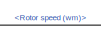
[diagram: root canvas - part 1/3, top center region]
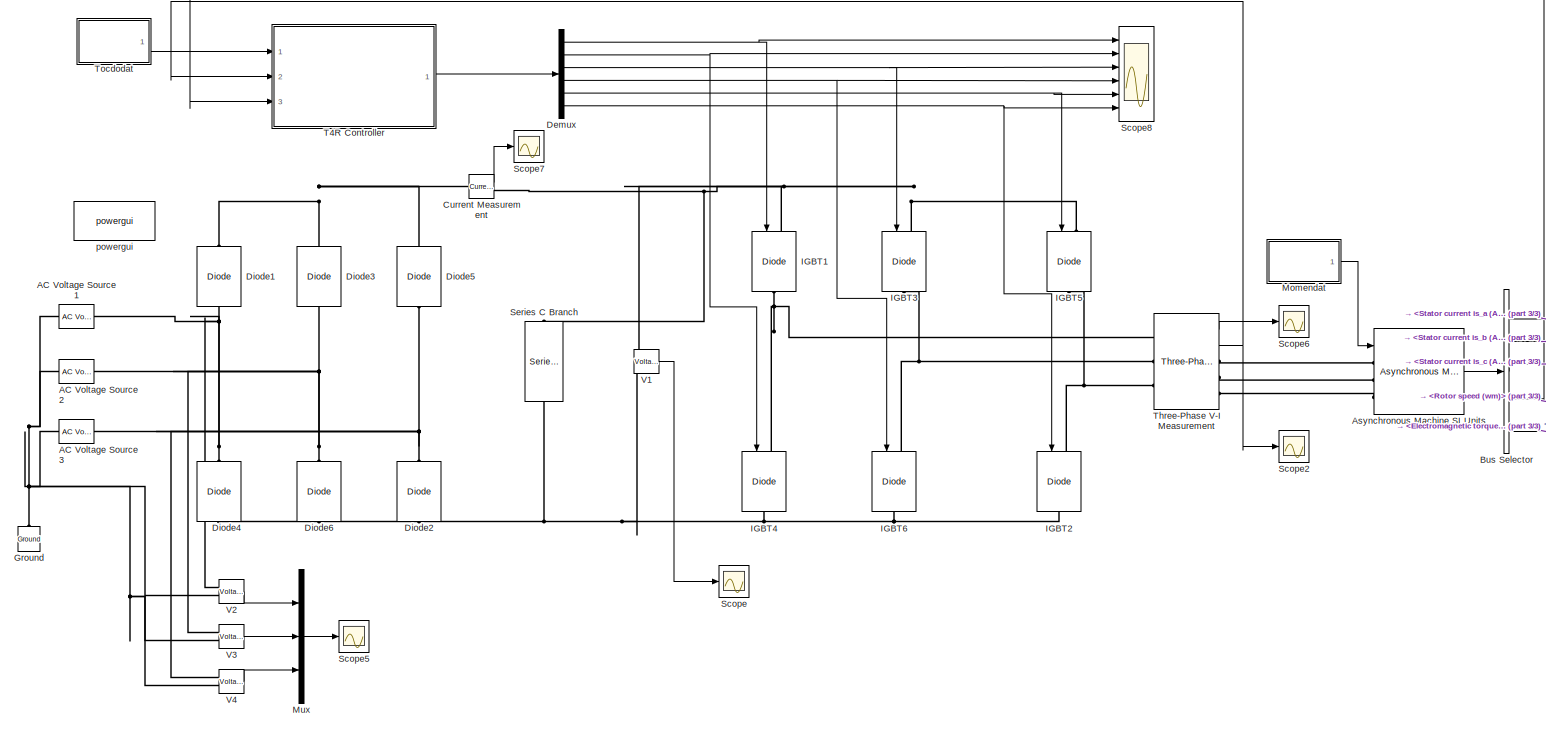
[diagram: root canvas - part 2/3, most of the canvas]
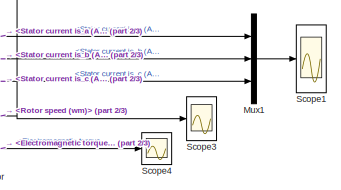
[diagram: root canvas - part 3/3, middle right region]
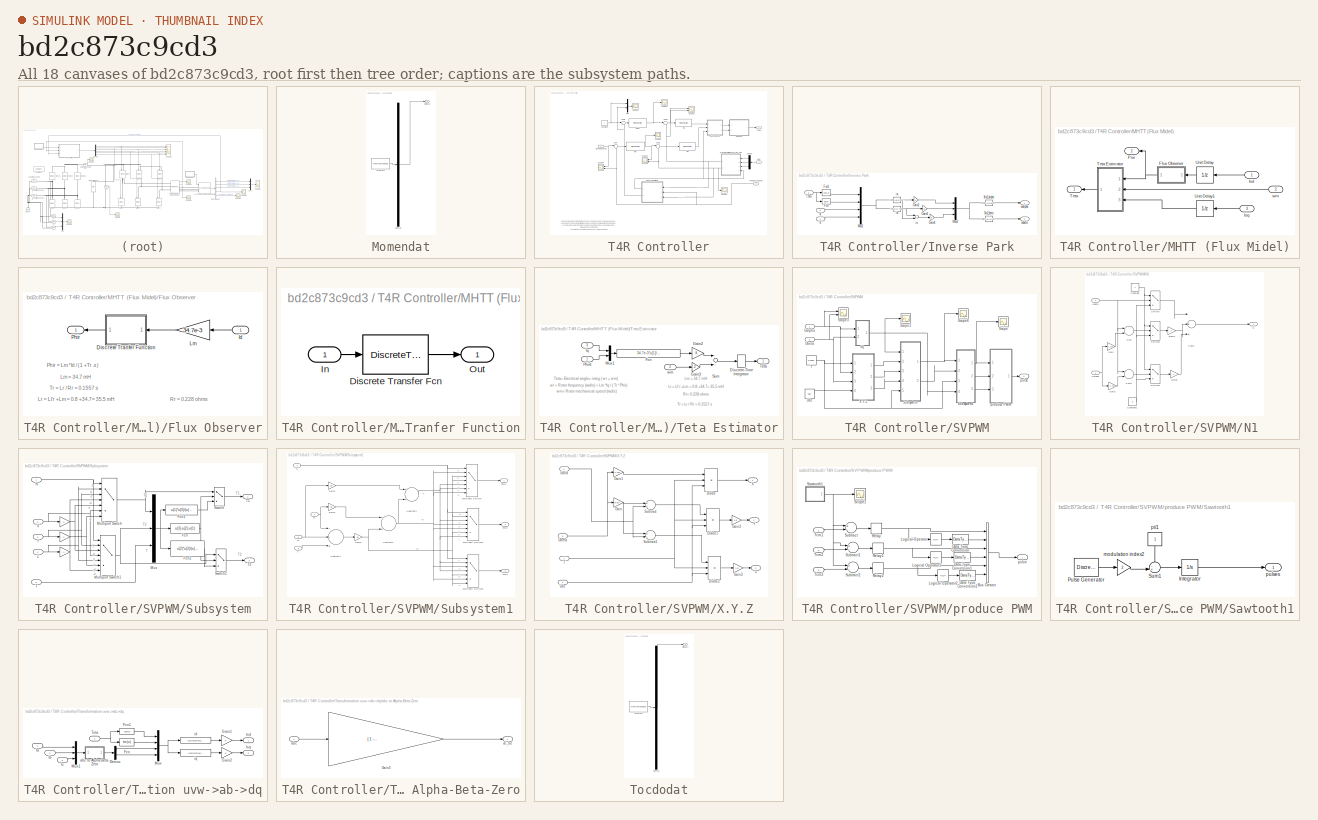
[diagram: thumbnail index - all 18 canvases of the model, root first then tree order]
MODEL slx_bd2c873c9cd3
KIND model
CONFIG AbsTol = auto
CONFIG FixedStep = auto
CONFIG MaxStep = 1e-4
CONFIG MinStep = auto
CONFIG RelTol = 1e-3
CONFIG SampleTimeConstraint = Unconstrained
CONFIG Solver = VariableStepAuto
CONFIG SolverMode = Auto
CONFIG SolverName = VariableStepAuto
CONFIG StartTime = 0.0
CONFIG StopTime = 7
BLOCK [Reference] AC Voltage Source 1  REF=powerlib/Electrical
Sources/AC Voltage Source
  Ports = [0, 0, 0, 0, 0, 1, 1]
  SourceBlock = powerlib/Electrical\nSources/AC Voltage Source
  SourceType = AC Voltage Source
BLOCK [Reference] AC Voltage Source 2  REF=powerlib/Electrical
Sources/AC Voltage Source
  Ports = [0, 0, 0, 0, 0, 1, 1]
  SourceBlock = powerlib/Electrical\nSources/AC Voltage Source
  SourceType = AC Voltage Source
BLOCK [Reference] AC Voltage Source 3  REF=powerlib/Electrical
Sources/AC Voltage Source
  Ports = [0, 0, 0, 0, 0, 1, 1]
  SourceBlock = powerlib/Electrical\nSources/AC Voltage Source
  SourceType = AC Voltage Source
BLOCK [Reference] Asynchronous Machine SI Units  REF=powerlib/Machines/Asynchronous Machine
SI Units
  AttributesFormatString = \n
  Ports = [1, 1, 0, 0, 0, 3]
  SourceBlock = powerlib/Machines/Asynchronous Machine\nSI Units
  SourceType = Asynchronous Machine
BLOCK [BusSelector] Bus Selector
  OutputSignals = Stator measurements.Stator current is_a (A),Stator measurements.Stator current is_b (A),Stator measurements.Stator current is_c (A),Mechanical.Rotor speed (wm),Mechanical.Electromagnetic torque Te (N*m)
  Ports = [1, 5]
BLOCK [Reference] Current Measurement  REF=powerlib/Measurements/Current Measurement
  Ports = [0, 1, 0, 0, 0, 1, 1]
  SourceBlock = powerlib/Measurements/Current Measurement
  SourceType = Current Measurement
  UserDataPersistent = on
BLOCK [Demux] Demux
  DisplayOption = bar
  Outputs = 6
  Ports = [1, 6]
BLOCK [Reference] Diode1  REF=powerlib/Power
Electronics/Diode
  Ports = [0, 0, 0, 0, 0, 1, 1]
  SourceBlock = powerlib/Power\nElectronics/Diode
  SourceType = Diode
BLOCK [Reference] Diode2  REF=powerlib/Power
Electronics/Diode
  Ports = [0, 0, 0, 0, 0, 1, 1]
  SourceBlock = powerlib/Power\nElectronics/Diode
  SourceType = Diode
BLOCK [Reference] Diode3  REF=powerlib/Power
Electronics/Diode
  Ports = [0, 0, 0, 0, 0, 1, 1]
  SourceBlock = powerlib/Power\nElectronics/Diode
  SourceType = Diode
BLOCK [Reference] Diode4  REF=powerlib/Power
Electronics/Diode
  Ports = [0, 0, 0, 0, 0, 1, 1]
  SourceBlock = powerlib/Power\nElectronics/Diode
  SourceType = Diode
BLOCK [Reference] Diode5  REF=powerlib/Power
Electronics/Diode
  Ports = [0, 0, 0, 0, 0, 1, 1]
  SourceBlock = powerlib/Power\nElectronics/Diode
  SourceType = Diode
BLOCK [Reference] Diode6  REF=powerlib/Power
Electronics/Diode
  Ports = [0, 0, 0, 0, 0, 1, 1]
  SourceBlock = powerlib/Power\nElectronics/Diode
  SourceType = Diode
BLOCK [Reference] Ground  REF=powerlib/Elements/Ground
  Ports = [0, 0, 0, 0, 0, 1]
  SourceBlock = powerlib/Elements/Ground
  SourceType = Ground
BLOCK [Reference] IGBT1  REF=powerlib/Power
Electronics/IGBT//Diode
  Ports = [1, 0, 0, 0, 0, 1, 1]
  SourceBlock = powerlib/Power\nElectronics/IGBT//Diode
  SourceType = IGBT/Diode
BLOCK [Reference] IGBT2  REF=powerlib/Power
Electronics/IGBT//Diode
  Ports = [1, 0, 0, 0, 0, 1, 1]
  SourceBlock = powerlib/Power\nElectronics/IGBT//Diode
  SourceType = IGBT/Diode
BLOCK [Reference] IGBT3  REF=powerlib/Power
Electronics/IGBT//Diode
  Ports = [1, 0, 0, 0, 0, 1, 1]
  SourceBlock = powerlib/Power\nElectronics/IGBT//Diode
  SourceType = IGBT/Diode
BLOCK [Reference] IGBT4  REF=powerlib/Power
Electronics/IGBT//Diode
  Ports = [1, 0, 0, 0, 0, 1, 1]
  SourceBlock = powerlib/Power\nElectronics/IGBT//Diode
  SourceType = IGBT/Diode
BLOCK [Reference] IGBT5  REF=powerlib/Power
Electronics/IGBT//Diode
  Ports = [1, 0, 0, 0, 0, 1, 1]
  SourceBlock = powerlib/Power\nElectronics/IGBT//Diode
  SourceType = IGBT/Diode
BLOCK [Reference] IGBT6  REF=powerlib/Power
Electronics/IGBT//Diode
  Ports = [1, 0, 0, 0, 0, 1, 1]
  SourceBlock = powerlib/Power\nElectronics/IGBT//Diode
  SourceType = IGBT/Diode
BLOCK [SubSystem] Momendat
  ClipboardFcn = sigbuilder_block('clipboard');
  CloseFcn = sigbuilder_block('close');
  ContinueFcn = sigbuilder_block('continue');
  CopyFcn = sigbuilder_block('copy');
  DeleteFcn = sigbuilder_block('delete');
  LoadFcn = sigbuilder_block('load');
  MaskHideContents = on
  ModelCloseFcn = sigbuilder_block('modelClose');
  NameChangeFcn = sigbuilder_block('namechange');
  OpenFcn = sigbuilder_block('open',[6 30 1012.5 482.25 ]);
  PauseFcn = sigbuilder_block('pause');
  Ports = [0, 1]
  PreSaveFcn = sigbuilder_block('preSave');
  RequestExecContextInheritance = off
  StartFcn = sigbuilder_block('start');
  StopFcn = sigbuilder_block('stop');
  Tag = STV Subsys
  Variant = off
BLOCK [Demux] Momendat/Demux
  Outputs = 1
  Ports = [1, 1]
  Tag = STV Demux
BLOCK [FromWorkspace] Momendat/FromWs
  SampleTime = 0
  Tag = STV FromWs
  VariableName = tuvar
  ZeroCross = on
BLOCK [Outport] Momendat/Signal 1
  IconDisplay = Port number
  Tag = STV Outport
BLOCK [Mux] Mux
  DisplayOption = bar
  Inputs = 3
  Ports = [3, 1]
BLOCK [Mux] Mux1
  DisplayOption = bar
  Inputs = 3
  Ports = [3, 1]
BLOCK [Scope] Scope
  Ports = [1]
  ScopeSpecificationString = Simulink.scopes.TimeScopeBlockCfg('CurrentConfiguration', extmgr.ConfigurationSet(extmgr.Configuration('Core','General UI',true),extmgr.Configuration('Core','Source UI',true),extmgr.Configuration('Sources','WiredSimulink',true,'DataLoggingVariableName','ScopeData1'),extmgr.Configuration('Visuals','Time Domain',true,'SerializedDisplays',{struct('MinYLimReal','-67.15846','MaxYLimReal','604.42612','Y...<+1666ch>
BLOCK [Scope] Scope1
  Ports = [1]
  ScopeSpecificationString = Simulink.scopes.TimeScopeBlockCfg('CurrentConfiguration', extmgr.ConfigurationSet(extmgr.Configuration('Core','General UI',true),extmgr.Configuration('Core','Source UI',true),extmgr.Configuration('Sources','WiredSimulink',true,'DataLoggingVariableName','ScopeData2'),extmgr.Configuration('Visuals','Time Domain',true,'SerializedDisplays',{struct('MinYLimReal','-135.91814','MaxYLimReal','154.72781','...<+1756ch>
BLOCK [Scope] Scope2
  Ports = [1]
  ScopeSpecificationString = Simulink.scopes.TimeScopeBlockCfg('CurrentConfiguration', extmgr.ConfigurationSet(extmgr.Configuration('Core','General UI',true),extmgr.Configuration('Core','Source UI',true),extmgr.Configuration('Sources','WiredSimulink',true,'DataLoggingVariableName','ScopeData3'),extmgr.Configuration('Visuals','Time Domain',true,'SerializedDisplays',{struct('MinYLimReal','-135.91814','MaxYLimReal','154.72781','...<+1591ch>
BLOCK [Scope] Scope3
  Ports = [1]
  ScopeSpecificationString = Simulink.scopes.TimeScopeBlockCfg('CurrentConfiguration', extmgr.ConfigurationSet(extmgr.Configuration('Core','General UI',true),extmgr.Configuration('Core','Source UI',true),extmgr.Configuration('Sources','WiredSimulink',true,'DataLoggingVariableName','ScopeData4'),extmgr.Configuration('Visuals','Time Domain',true,'SerializedDisplays',{struct('MinYLimReal','-48.2256','MaxYLimReal','48.30918','YLa...<+1680ch>
BLOCK [Scope] Scope4
  Ports = [1]
  ScopeSpecificationString = Simulink.scopes.TimeScopeBlockCfg('CurrentConfiguration', extmgr.ConfigurationSet(extmgr.Configuration('Core','General UI',true,'FigureColor',[0 0 0]),extmgr.Configuration('Core','Source UI',true),extmgr.Configuration('Sources','WiredSimulink',true,'DataLoggingVariableName','ScopeData5'),extmgr.Configuration('Visuals','Time Domain',true,'SerializedDisplays',{struct('MinYLimReal','-11.80577','MaxYL...<+1526ch>
BLOCK [Scope] Scope5
  Ports = [1]
  ScopeSpecificationString = Simulink.scopes.TimeScopeBlockCfg('CurrentConfiguration', extmgr.ConfigurationSet(extmgr.Configuration('Core','General UI',true),extmgr.Configuration('Core','Source UI',true),extmgr.Configuration('Sources','WiredSimulink',true,'DataLoggingVariableName','ScopeData6'),extmgr.Configuration('Visuals','Time Domain',true,'SerializedDisplays',{struct('MinYLimReal','-388.90872','MaxYLimReal','388.90873','...<+1566ch>
BLOCK [Scope] Scope6
  Ports = [1]
  ScopeSpecificationString = Simulink.scopes.TimeScopeBlockCfg('CurrentConfiguration', extmgr.ConfigurationSet(extmgr.Configuration('Core','General UI',true),extmgr.Configuration('Core','Source UI',true),extmgr.Configuration('Sources','WiredSimulink',true,'DataLoggingVariableName','ScopeData7'),extmgr.Configuration('Visuals','Time Domain',true,'SerializedDisplays',{struct('MinYLimReal','-671.6235','MaxYLimReal','671.62581','Y...<+1584ch>
BLOCK [Scope] Scope7
  Ports = [1]
  ScopeSpecificationString = Simulink.scopes.TimeScopeBlockCfg('CurrentConfiguration', extmgr.ConfigurationSet(extmgr.Configuration('Core','General UI',true),extmgr.Configuration('Core','Source UI',true),extmgr.Configuration('Sources','WiredSimulink',true,'DataLoggingVariableName','ScopeData8'),extmgr.Configuration('Visuals','Time Domain',true,'SerializedDisplays',{struct('MinYLimReal','-33580.51348','MaxYLimReal','302224.358...<+1519ch>
BLOCK [Scope] Scope8
  NumInputPorts = 6
  Ports = [6]
  ScopeSpecificationString = Simulink.scopes.TimeScopeBlockCfg('CurrentConfiguration', extmgr.ConfigurationSet(extmgr.Configuration('Core','General UI',true),extmgr.Configuration('Core','Source UI',true),extmgr.Configuration('Sources','WiredSimulink',true),extmgr.Configuration('Visuals','Time Domain',true,'SerializedDisplays',{struct('MinYLimReal','-0.13584','MaxYLimReal','1.11416','YLabelReal','','MinYLimMag','0.00000','MaxY...<+1477ch>
BLOCK [Reference] Series C Branch  REF=powerlib/Elements/Series RLC Branch
  Ports = [0, 0, 0, 0, 0, 1, 1]
  SourceBlock = powerlib/Elements/Series RLC Branch
  SourceType = Series RLC Branch
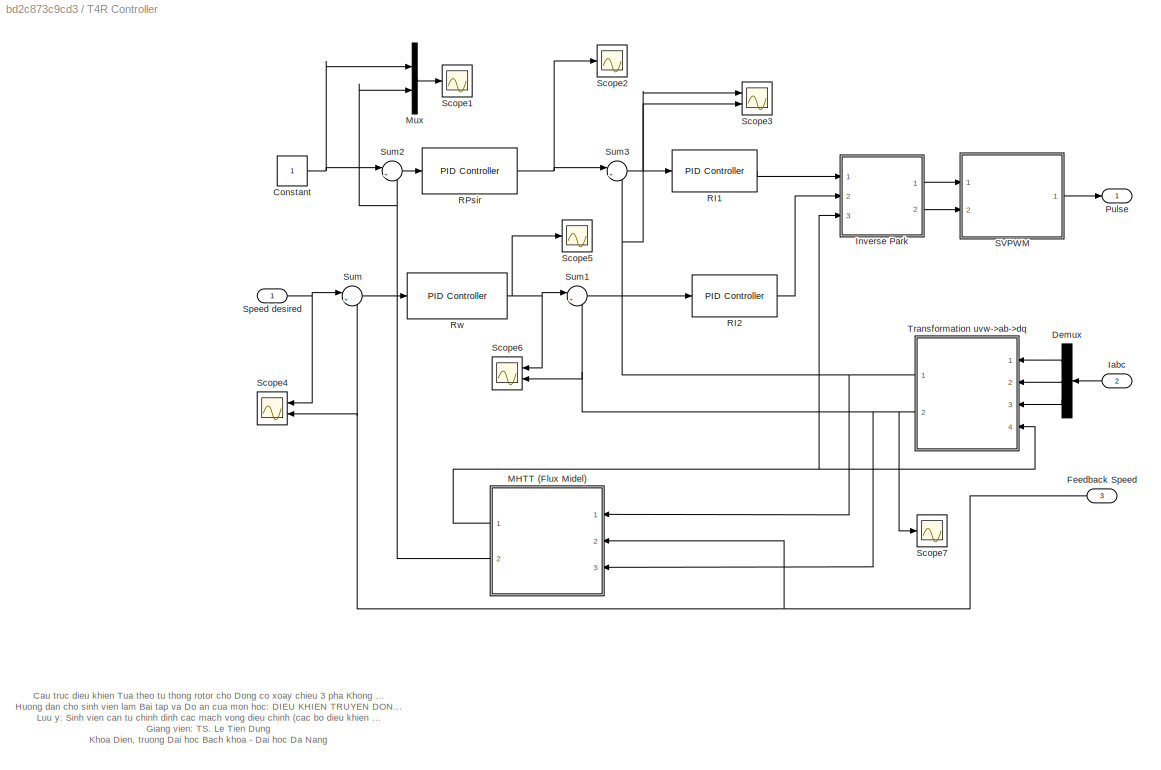
BLOCK [SubSystem] T4R Controller
  Ports = [3, 1]
  RequestExecContextInheritance = off
  Variant = off
BLOCK [Constant] T4R Controller/Constant
BLOCK [Demux] T4R Controller/Demux
  DisplayOption = bar
  Outputs = 3
  Ports = [1, 3]
BLOCK [Inport] T4R Controller/Feedback Speed
  IconDisplay = Port number
  Port = 3
BLOCK [Inport] T4R Controller/Iabc
  IconDisplay = Port number
  Port = 2
BLOCK [SubSystem] T4R Controller/Inverse Park
  Ports = [3, 2]
  RequestExecContextInheritance = off
  Variant = off
BLOCK [Fcn] T4R Controller/Inverse Park/3to2_alpha
  Expr = u[1]-0.5*u[2]-0.5*u[3]
BLOCK [Fcn] T4R Controller/Inverse Park/3to2_beta
  Expr = sqrt(3)/2*(u[2]-u[3])
BLOCK [Fcn] T4R Controller/Inverse Park/Fcn
  Expr = sin(u)
BLOCK [Fcn] T4R Controller/Inverse Park/Fcn1
  Expr = cos(u)
BLOCK [Gain] T4R Controller/Inverse Park/Gain2
BLOCK [Gain] T4R Controller/Inverse Park/Gain3
BLOCK [Gain] T4R Controller/Inverse Park/Gain4
BLOCK [Mux] T4R Controller/Inverse Park/Mux1
  DisplayOption = bar
  Ports = [4, 1]
BLOCK [Mux] T4R Controller/Inverse Park/Mux3
  DisplayOption = bar
  Inputs = 3
  Ports = [3, 1]
BLOCK [Inport] T4R Controller/Inverse Park/Teta
  IconDisplay = Port number
  Port = 3
BLOCK [Inport] T4R Controller/Inverse Park/d
  IconDisplay = Port number
BLOCK [Fcn] T4R Controller/Inverse Park/ia
  Expr = -u[3]*u[2] + u[4]*u[1]
BLOCK [Fcn] T4R Controller/Inverse Park/ib
  Expr = (-u[1]+1.7320508*u[2])*u[4]*0.5+(u[2]+1.7320508*u[1])*u[3]*0.5
BLOCK [Sum] T4R Controller/Inverse Park/ic
  Inputs = --
  Ports = [2, 1]
BLOCK [Inport] T4R Controller/Inverse Park/q
  IconDisplay = Port number
  Port = 2
BLOCK [Outport] T4R Controller/Inverse Park/usalpha
  IconDisplay = Port number
BLOCK [Outport] T4R Controller/Inverse Park/usbeta
  IconDisplay = Port number
  Port = 2
BLOCK [SubSystem] T4R Controller/MHTT (Flux Midel)
  Ports = [3, 2]
  RequestExecContextInheritance = off
  Variant = off
BLOCK [SubSystem] T4R Controller/MHTT (Flux Midel)/Flux Observer
  Ports = [1, 1]
  RequestExecContextInheritance = off
  Variant = off
BLOCK [SubSystem] T4R Controller/MHTT (Flux Midel)/Flux Observer/Discrete Tranfer Function
  Ports = [1, 1]
  RequestExecContextInheritance = off
  Variant = off
BLOCK [DiscreteTransferFcn] T4R Controller/MHTT (Flux Midel)/Flux Observer/Discrete Tranfer Function/Discrete Transfer Fcn
  Denominator = dend
  InputPortMap = u0
  Numerator = numd
  Ports = [1, 1]
  SampleTime = Ts
BLOCK [Inport] T4R Controller/MHTT (Flux Midel)/Flux Observer/Discrete Tranfer Function/In
  IconDisplay = Port number
BLOCK [Outport] T4R Controller/MHTT (Flux Midel)/Flux Observer/Discrete Tranfer Function/Out
  IconDisplay = Port number
  InitialOutput = 0
BLOCK [Inport] T4R Controller/MHTT (Flux Midel)/Flux Observer/Id
  IconDisplay = Port number
BLOCK [Gain] T4R Controller/MHTT (Flux Midel)/Flux Observer/Lm
  Gain = 34.7e-3
BLOCK [Outport] T4R Controller/MHTT (Flux Midel)/Flux Observer/Phir
  IconDisplay = Port number
BLOCK [Inport] T4R Controller/MHTT (Flux Midel)/Isd
  IconDisplay = Port number
BLOCK [Inport] T4R Controller/MHTT (Flux Midel)/Isq
  IconDisplay = Port number
  Port = 3
BLOCK [Outport] T4R Controller/MHTT (Flux Midel)/Psir
  IconDisplay = Port number
  Port = 2
BLOCK [Outport] T4R Controller/MHTT (Flux Midel)/Teta
  IconDisplay = Port number
BLOCK [SubSystem] T4R Controller/MHTT (Flux Midel)/Teta Estimator
  Ports = [3, 1]
  RequestExecContextInheritance = off
  Variant = off
BLOCK [DiscreteIntegrator] T4R Controller/MHTT (Flux Midel)/Teta Estimator/Discrete-Time Integrator
  ICPrevOutput = DiscIntNeverNeededParam
  ICPrevScaledInput = DiscIntNeverNeededParam
  Ports = [1, 1]
  SampleTime = 0.0001
BLOCK [Fcn] T4R Controller/MHTT (Flux Midel)/Teta Estimator/Fcn
  Expr = 34.7e-3*u[1]/(u[2]*0.1557+1e-3)
BLOCK [Gain] T4R Controller/MHTT (Flux Midel)/Teta Estimator/Gain2
BLOCK [Gain] T4R Controller/MHTT (Flux Midel)/Teta Estimator/Gain3
  Gain = 2
BLOCK [Inport] T4R Controller/MHTT (Flux Midel)/Teta Estimator/Iq
  IconDisplay = Port number
  Port = 3
BLOCK [Mux] T4R Controller/MHTT (Flux Midel)/Teta Estimator/Mux1
  DisplayOption = bar
  Inputs = 2
  Ports = [2, 1]
BLOCK [Inport] T4R Controller/MHTT (Flux Midel)/Teta Estimator/Phird
  IconDisplay = Port number
BLOCK [Sum] T4R Controller/MHTT (Flux Midel)/Teta Estimator/Sum
  Ports = [2, 1]
BLOCK [Outport] T4R Controller/MHTT (Flux Midel)/Teta Estimator/Teta
  IconDisplay = Port number
  InitialOutput = 0
BLOCK [Inport] T4R Controller/MHTT (Flux Midel)/Teta Estimator/wm
  IconDisplay = Port number
  Port = 2
BLOCK [UnitDelay] T4R Controller/MHTT (Flux Midel)/Unit Delay
  InputProcessing = Elements as channels (sample based)
  SampleTime = -1
BLOCK [UnitDelay] T4R Controller/MHTT (Flux Midel)/Unit Delay1
  InputProcessing = Elements as channels (sample based)
  SampleTime = -1
BLOCK [Inport] T4R Controller/MHTT (Flux Midel)/wm
  IconDisplay = Port number
  Port = 2
BLOCK [Mux] T4R Controller/Mux
  DisplayOption = bar
  Inputs = 2
  Ports = [2, 1]
BLOCK [Outport] T4R Controller/Pulse
  IconDisplay = Port number
BLOCK [Reference] T4R Controller/RI1  REF=simulink/Continuous/PID Controller
  Ports = [1, 1]
  SourceBlock = simulink/Continuous/PID Controller
  SourceType = PID 1dof
BLOCK [Reference] T4R Controller/RI2  REF=simulink/Continuous/PID Controller
  Ports = [1, 1]
  SourceBlock = simulink/Continuous/PID Controller
  SourceType = PID 1dof
BLOCK [Reference] T4R Controller/RPsir  REF=simulink/Continuous/PID Controller
  Ports = [1, 1]
  SourceBlock = simulink/Continuous/PID Controller
  SourceType = PID 1dof
BLOCK [Reference] T4R Controller/Rw  REF=simulink/Continuous/PID Controller
  Ports = [1, 1]
  SourceBlock = simulink/Continuous/PID Controller
  SourceType = PID 1dof
BLOCK [SubSystem] T4R Controller/SVPWM
  Ports = [2, 1]
  RequestExecContextInheritance = off
  Variant = off
BLOCK [SubSystem] T4R Controller/SVPWM/N1
  Ports = [2, 1]
  RequestExecContextInheritance = off
  Variant = off
BLOCK [Constant] T4R Controller/SVPWM/N1/Constant
BLOCK [Constant] T4R Controller/SVPWM/N1/Constant1
  Value = 0
BLOCK [Gain] T4R Controller/SVPWM/N1/Gain
  Gain = 1.732
  OutDataTypeStr = Inherit: Inherit via internal rule
  ParamDataTypeStr = Inherit: Inherit via internal rule
  SaturateOnIntegerOverflow = off
BLOCK [Gain] T4R Controller/SVPWM/N1/Gain1
  Gain = -1.732
  OutDataTypeStr = Inherit: Inherit via internal rule
  ParamDataTypeStr = Inherit: Inherit via internal rule
  SaturateOnIntegerOverflow = off
BLOCK [Gain] T4R Controller/SVPWM/N1/Gain2
  Gain = 2
  OutDataTypeStr = Inherit: Inherit via internal rule
  ParamDataTypeStr = Inherit: Inherit via internal rule
  SaturateOnIntegerOverflow = off
BLOCK [Gain] T4R Controller/SVPWM/N1/Gain3
  Gain = 4
  OutDataTypeStr = Inherit: Inherit via internal rule
  ParamDataTypeStr = Inherit: Inherit via internal rule
  SaturateOnIntegerOverflow = off
BLOCK [Outport] T4R Controller/SVPWM/N1/N
  IconDisplay = Port number
BLOCK [Sum] T4R Controller/SVPWM/N1/Sum
  InputSameDT = off
  Inputs = |-+
  OutDataTypeStr = Inherit: Inherit via internal rule
  Ports = [2, 1]
  SaturateOnIntegerOverflow = off
BLOCK [Sum] T4R Controller/SVPWM/N1/Sum1
  InputSameDT = off
  Inputs = |-+
  OutDataTypeStr = Inherit: Inherit via internal rule
  Ports = [2, 1]
  SaturateOnIntegerOverflow = off
BLOCK [Sum] T4R Controller/SVPWM/N1/Sum2
  InputSameDT = off
  Inputs = |+++
  OutDataTypeStr = Inherit: Inherit via internal rule
  Ports = [3, 1]
  SaturateOnIntegerOverflow = off
BLOCK [Switch] T4R Controller/SVPWM/N1/Switch
  InputSameDT = off
  SaturateOnIntegerOverflow = off
BLOCK [Switch] T4R Controller/SVPWM/N1/Switch1
  InputSameDT = off
  SaturateOnIntegerOverflow = off
BLOCK [Switch] T4R Controller/SVPWM/N1/Switch2
  InputSameDT = off
  SaturateOnIntegerOverflow = off
BLOCK [Inport] T4R Controller/SVPWM/N1/Ualpha
  IconDisplay = Port number
BLOCK [Inport] T4R Controller/SVPWM/N1/Ubeta
  IconDisplay = Port number
  Port = 2
BLOCK [Scope] T4R Controller/SVPWM/Scope
  Ports = [1]
  ScopeSpecificationString = Simulink.scopes.TimeScopeBlockCfg('CurrentConfiguration', extmgr.ConfigurationSet(extmgr.Configuration('Core','General UI',true,'FigureColor',[0.156862745098039 0.156862745098039 0.156862745098039]),extmgr.Configuration('Core','Source UI',true),extmgr.Configuration('Sources','WiredSimulink',true,'DataLoggingSaveFormat','StructureWithTime','DataLoggingDecimation','1','DataLoggingDecimateData',true)...<+2737ch>
BLOCK [Scope] T4R Controller/SVPWM/Scope1
  Ports = [1]
  ScopeSpecificationString = Simulink.scopes.TimeScopeBlockCfg('CurrentConfiguration', extmgr.ConfigurationSet(extmgr.Configuration('Core','General UI',true,'FigureColor',[0.156862745098039 0.156862745098039 0.156862745098039]),extmgr.Configuration('Core','Source UI',true),extmgr.Configuration('Sources','WiredSimulink',true,'DataLoggingVariableName','ScopeData1','DataLoggingSaveFormat','StructureWithTime','DataLoggingDecimati...<+2703ch>
BLOCK [Scope] T4R Controller/SVPWM/Scope3
  NumInputPorts = 2
  Ports = [2]
  ScopeSpecificationString = Simulink.scopes.TimeScopeBlockCfg('CurrentConfiguration', extmgr.ConfigurationSet(extmgr.Configuration('Core','General UI',true,'FigureColor',[0.156862745098039 0.156862745098039 0.156862745098039]),extmgr.Configuration('Core','Source UI',true),extmgr.Configuration('Sources','WiredSimulink',true,'DataLoggingVariableName','ScopeData2','DataLoggingSaveFormat','StructureWithTime','DataLoggingDecimati...<+4020ch>
BLOCK [Scope] T4R Controller/SVPWM/Scope6
  Ports = [1]
  ScopeSpecificationString = Simulink.scopes.TimeScopeBlockCfg('CurrentConfiguration', extmgr.ConfigurationSet(extmgr.Configuration('Core','General UI',true,'FigureColor',[0.156862745098039 0.156862745098039 0.156862745098039]),extmgr.Configuration('Core','Source UI',true),extmgr.Configuration('Sources','WiredSimulink',true,'DataLoggingVariableName','ScopeData3','DataLoggingSaveFormat','StructureWithTime','DataLoggingDecimati...<+2703ch>
BLOCK [SubSystem] T4R Controller/SVPWM/Subsystem
  Ports = [5, 2]
  RequestExecContextInheritance = off
  Variant = off
BLOCK [Gain] T4R Controller/SVPWM/Subsystem/ 
  Gain = -1
  OutDataTypeStr = Inherit: Inherit via internal rule
  ParamDataTypeStr = Inherit: Inherit via internal rule
  SaturateOnIntegerOverflow = off
BLOCK [Gain] T4R Controller/SVPWM/Subsystem/  
  Gain = -1
  OutDataTypeStr = Inherit: Inherit via internal rule
  ParamDataTypeStr = Inherit: Inherit via internal rule
  SaturateOnIntegerOverflow = off
BLOCK [Gain] T4R Controller/SVPWM/Subsystem/    
  Gain = -1
  OutDataTypeStr = Inherit: Inherit via internal rule
  ParamDataTypeStr = Inherit: Inherit via internal rule
  SaturateOnIntegerOverflow = off
BLOCK [Fcn] T4R Controller/SVPWM/Subsystem/Fcn
  Expr = u(3)-u(2)-u(1)
BLOCK [Fcn] T4R Controller/SVPWM/Subsystem/Fcn1
  Expr = u(1)*u(3)/(u(1)+u(2))
BLOCK [Fcn] T4R Controller/SVPWM/Subsystem/Fcn2
  Expr = u(2)*u(3)/(u(1)+u(2))
BLOCK [MultiPortSwitch] T4R Controller/SVPWM/Subsystem/Multiport Switch
  DiagnosticForDefault = None
  InputSameDT = off
  Inputs = 6
  Ports = [7, 1]
  SaturateOnIntegerOverflow = off
BLOCK [MultiPortSwitch] T4R Controller/SVPWM/Subsystem/Multiport Switch1
  DiagnosticForDefault = None
  InputSameDT = off
  Inputs = 6
  Ports = [7, 1]
  SaturateOnIntegerOverflow = off
BLOCK [Mux] T4R Controller/SVPWM/Subsystem/Mux
  DisplayOption = bar
  Inputs = 3
  Ports = [3, 1]
BLOCK [Inport] T4R Controller/SVPWM/Subsystem/N
  IconDisplay = Port number
BLOCK [Switch] T4R Controller/SVPWM/Subsystem/Switch
  InputSameDT = off
  SaturateOnIntegerOverflow = off
BLOCK [Switch] T4R Controller/SVPWM/Subsystem/Switch1
  Criteria = u2 > Threshold
  InputSameDT = off
  SaturateOnIntegerOverflow = off
BLOCK [Inport] T4R Controller/SVPWM/Subsystem/T
  IconDisplay = Port number
  Port = 5
BLOCK [Outport] T4R Controller/SVPWM/Subsystem/T1
  IconDisplay = Port number
BLOCK [Outport] T4R Controller/SVPWM/Subsystem/T2
  IconDisplay = Port number
  Port = 2
BLOCK [Inport] T4R Controller/SVPWM/Subsystem/X
  IconDisplay = Port number
  Port = 2
BLOCK [Inport] T4R Controller/SVPWM/Subsystem/Y
  IconDisplay = Port number
  Port = 3
BLOCK [Inport] T4R Controller/SVPWM/Subsystem/Z
  IconDisplay = Port number
  Port = 4
BLOCK [SubSystem] T4R Controller/SVPWM/Subsystem1
  Ports = [4, 3]
  RequestExecContextInheritance = off
  Variant = off
BLOCK [Gain] T4R Controller/SVPWM/Subsystem1/Gain1
  Gain = 1/4
  OutDataTypeStr = Inherit: Inherit via internal rule
  ParamDataTypeStr = Inherit: Inherit via internal rule
  SaturateOnIntegerOverflow = off
BLOCK [Gain] T4R Controller/SVPWM/Subsystem1/Gain2
  Gain = 0.5
  OutDataTypeStr = Inherit: Inherit via internal rule
  ParamDataTypeStr = Inherit: Inherit via internal rule
  SaturateOnIntegerOverflow = off
BLOCK [Gain] T4R Controller/SVPWM/Subsystem1/Gain3
  Gain = 0.5
  OutDataTypeStr = Inherit: Inherit via internal rule
  ParamDataTypeStr = Inherit: Inherit via internal rule
  SaturateOnIntegerOverflow = off
BLOCK [MultiPortSwitch] T4R Controller/SVPWM/Subsystem1/Multiport Switch
  DiagnosticForDefault = None
  InputSameDT = off
  Inputs = 6
  Ports = [7, 1]
  SaturateOnIntegerOverflow = off
BLOCK [MultiPortSwitch] T4R Controller/SVPWM/Subsystem1/Multiport Switch1
  DiagnosticForDefault = None
  InputSameDT = off
  Inputs = 6
  Ports = [7, 1]
  SaturateOnIntegerOverflow = off
BLOCK [MultiPortSwitch] T4R Controller/SVPWM/Subsystem1/Multiport Switch2
  DiagnosticForDefault = None
  InputSameDT = off
  Inputs = 6
  Ports = [7, 1]
  SaturateOnIntegerOverflow = off
BLOCK [Inport] T4R Controller/SVPWM/Subsystem1/N
  IconDisplay = Port number
  Port = 4
BLOCK [Sum] T4R Controller/SVPWM/Subsystem1/Subtract1
  InputSameDT = off
  Inputs = --+
  OutDataTypeStr = Inherit: Inherit via internal rule
  Ports = [3, 1]
  SaturateOnIntegerOverflow = off
BLOCK [Sum] T4R Controller/SVPWM/Subsystem1/Subtract2
  InputSameDT = off
  OutDataTypeStr = Inherit: Inherit via internal rule
  Ports = [2, 1]
  SaturateOnIntegerOverflow = off
BLOCK [Sum] T4R Controller/SVPWM/Subsystem1/Subtract3
  InputSameDT = off
  OutDataTypeStr = Inherit: Inherit via internal rule
  Ports = [2, 1]
  SaturateOnIntegerOverflow = off
BLOCK [Inport] T4R Controller/SVPWM/Subsystem1/T
  IconDisplay = Port number
  Port = 3
BLOCK [Inport] T4R Controller/SVPWM/Subsystem1/T1
  IconDisplay = Port number
BLOCK [Inport] T4R Controller/SVPWM/Subsystem1/T2
  IconDisplay = Port number
  Port = 2
BLOCK [Outport] T4R Controller/SVPWM/Subsystem1/Tcm1
  IconDisplay = Port number
BLOCK [Outport] T4R Controller/SVPWM/Subsystem1/Tcm2
  IconDisplay = Port number
  Port = 2
BLOCK [Outport] T4R Controller/SVPWM/Subsystem1/Tcm3
  IconDisplay = Port number
  Port = 3
BLOCK [Constant] T4R Controller/SVPWM/T
  Value = 0.0001
BLOCK [Inport] T4R Controller/SVPWM/Ualpha
  IconDisplay = Port number
BLOCK [Inport] T4R Controller/SVPWM/Ubeta
  IconDisplay = Port number
  Port = 2
BLOCK [Constant] T4R Controller/SVPWM/Udc
  Value = 620
BLOCK [SubSystem] T4R Controller/SVPWM/X.Y.Z
  Ports = [4, 3]
  RequestExecContextInheritance = off
  Variant = off
BLOCK [Product] T4R Controller/SVPWM/X.Y.Z/Divide
  InputSameDT = off
  Inputs = **/
  OutDataTypeStr = Inherit: Inherit via internal rule
  Ports = [3, 1]
  RndMeth = Floor
  SaturateOnIntegerOverflow = off
BLOCK [Product] T4R Controller/SVPWM/X.Y.Z/Divide1
  InputSameDT = off
  Inputs = **/
  OutDataTypeStr = Inherit: Inherit via internal rule
  Ports = [3, 1]
  RndMeth = Floor
  SaturateOnIntegerOverflow = off
BLOCK [Product] T4R Controller/SVPWM/X.Y.Z/Divide2
  InputSameDT = off
  Inputs = **/
  OutDataTypeStr = Inherit: Inherit via internal rule
  Ports = [3, 1]
  RndMeth = Floor
  SaturateOnIntegerOverflow = off
BLOCK [Gain] T4R Controller/SVPWM/X.Y.Z/Gain
  Gain = 0.577
  OutDataTypeStr = Inherit: Inherit via internal rule
  ParamDataTypeStr = Inherit: Inherit via internal rule
  SaturateOnIntegerOverflow = off
BLOCK [Gain] T4R Controller/SVPWM/X.Y.Z/Gain1
  Gain = 1.732
  OutDataTypeStr = Inherit: Inherit via internal rule
  ParamDataTypeStr = Inherit: Inherit via internal rule
  SaturateOnIntegerOverflow = off
BLOCK [Gain] T4R Controller/SVPWM/X.Y.Z/Gain2
  Gain = 1.5
  OutDataTypeStr = Inherit: Inherit via internal rule
  ParamDataTypeStr = Inherit: Inherit via internal rule
  SaturateOnIntegerOverflow = off
BLOCK [Gain] T4R Controller/SVPWM/X.Y.Z/Gain3
  Gain = 1.5
  OutDataTypeStr = Inherit: Inherit via internal rule
  ParamDataTypeStr = Inherit: Inherit via internal rule
  SaturateOnIntegerOverflow = off
BLOCK [Sum] T4R Controller/SVPWM/X.Y.Z/Subtract
  InputSameDT = off
  OutDataTypeStr = Inherit: Inherit via internal rule
  Ports = [2, 1]
  SaturateOnIntegerOverflow = off
BLOCK [Sum] T4R Controller/SVPWM/X.Y.Z/Subtract1
  InputSameDT = off
  Inputs = +-
  OutDataTypeStr = Inherit: Inherit via internal rule
  Ports = [2, 1]
  SaturateOnIntegerOverflow = off
BLOCK [Inport] T4R Controller/SVPWM/X.Y.Z/T
  IconDisplay = Port number
BLOCK [Inport] T4R Controller/SVPWM/X.Y.Z/Ualfa
  IconDisplay = Port number
  Port = 2
BLOCK [Inport] T4R Controller/SVPWM/X.Y.Z/Ubeta
  IconDisplay = Port number
  Port = 3
BLOCK [Inport] T4R Controller/SVPWM/X.Y.Z/Udc
  IconDisplay = Port number
  Port = 4
BLOCK [Outport] T4R Controller/SVPWM/X.Y.Z/X
  IconDisplay = Port number
BLOCK [Outport] T4R Controller/SVPWM/X.Y.Z/Y
  IconDisplay = Port number
  Port = 2
BLOCK [Outport] T4R Controller/SVPWM/X.Y.Z/Z
  IconDisplay = Port number
  Port = 3
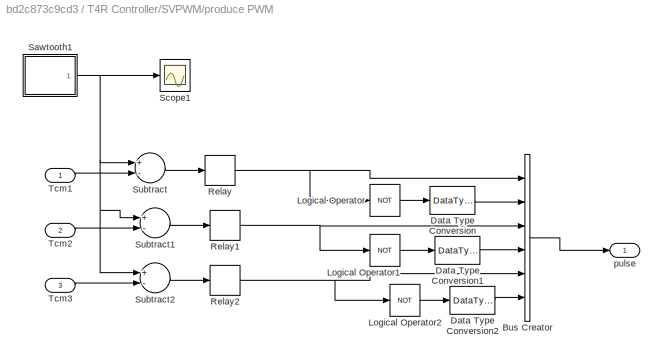
BLOCK [SubSystem] T4R Controller/SVPWM/produce PWM
  Ports = [3, 1]
  RequestExecContextInheritance = off
  Variant = off
BLOCK [BusCreator] T4R Controller/SVPWM/produce PWM/Bus Creator
  DisplayOption = bar
  InheritFromInputs = on
  Inputs = 6
  Ports = [6, 1]
BLOCK [DataTypeConversion] T4R Controller/SVPWM/produce PWM/Data Type Conversion
  OutDataTypeStr = double
  RndMeth = Floor
  SaturateOnIntegerOverflow = off
BLOCK [DataTypeConversion] T4R Controller/SVPWM/produce PWM/Data Type Conversion1
  OutDataTypeStr = double
  RndMeth = Floor
  SaturateOnIntegerOverflow = off
BLOCK [DataTypeConversion] T4R Controller/SVPWM/produce PWM/Data Type Conversion2
  OutDataTypeStr = double
  RndMeth = Floor
  SaturateOnIntegerOverflow = off
BLOCK [Logic] T4R Controller/SVPWM/produce PWM/Logical Operator
  AllPortsSameDT = off
  Operator = NOT
  Ports = [1, 1]
BLOCK [Logic] T4R Controller/SVPWM/produce PWM/Logical Operator1
  AllPortsSameDT = off
  Operator = NOT
  Ports = [1, 1]
BLOCK [Logic] T4R Controller/SVPWM/produce PWM/Logical Operator2
  AllPortsSameDT = off
  Operator = NOT
  Ports = [1, 1]
BLOCK [Relay] T4R Controller/SVPWM/produce PWM/Relay
  InputProcessing = Elements as channels (sample based)
BLOCK [Relay] T4R Controller/SVPWM/produce PWM/Relay1
  InputProcessing = Elements as channels (sample based)
BLOCK [Relay] T4R Controller/SVPWM/produce PWM/Relay2
  InputProcessing = Elements as channels (sample based)
BLOCK [SubSystem] T4R Controller/SVPWM/produce PWM/Sawtooth1
  Ports = [0, 1]
  RequestExecContextInheritance = off
  Variant = off
BLOCK [Integrator] T4R Controller/SVPWM/produce PWM/Sawtooth1/Integrator
  Ports = [1, 1]
BLOCK [DiscretePulseGenerator] T4R Controller/SVPWM/produce PWM/Sawtooth1/Pulse Generator
  Period = 0.0001
  Ports = [0, 1]
  PulseType = Time based
  PulseWidth = 50
BLOCK [Sum] T4R Controller/SVPWM/produce PWM/Sawtooth1/Sum1
  IconShape = round
  Inputs = -+|
  Ports = [2, 1]
BLOCK [Gain] T4R Controller/SVPWM/produce PWM/Sawtooth1/modulation index2
  Gain = 2
BLOCK [Constant] T4R Controller/SVPWM/produce PWM/Sawtooth1/pi//1
BLOCK [Outport] T4R Controller/SVPWM/produce PWM/Sawtooth1/pulses
  IconDisplay = Port number
BLOCK [Scope] T4R Controller/SVPWM/produce PWM/Scope1
  Ports = [1]
  ScopeSpecificationString = Simulink.scopes.TimeScopeBlockCfg('CurrentConfiguration', extmgr.ConfigurationSet(extmgr.Configuration('Core','General UI',true,'FigureColor',[0.156862745098039 0.156862745098039 0.156862745098039]),extmgr.Configuration('Core','Source UI',true),extmgr.Configuration('Sources','WiredSimulink',true,'DataLoggingVariableName','ScopeData6','DataLoggingSaveFormat','StructureWithTime','DataLoggingDecimati...<+2768ch>
BLOCK [Sum] T4R Controller/SVPWM/produce PWM/Subtract
  InputSameDT = off
  Inputs = +-
  OutDataTypeStr = Inherit: Inherit via internal rule
  Ports = [2, 1]
  SaturateOnIntegerOverflow = off
BLOCK [Sum] T4R Controller/SVPWM/produce PWM/Subtract1
  InputSameDT = off
  Inputs = +-
  OutDataTypeStr = Inherit: Inherit via internal rule
  Ports = [2, 1]
  SaturateOnIntegerOverflow = off
BLOCK [Sum] T4R Controller/SVPWM/produce PWM/Subtract2
  InputSameDT = off
  Inputs = +-
  OutDataTypeStr = Inherit: Inherit via internal rule
  Ports = [2, 1]
  SaturateOnIntegerOverflow = off
BLOCK [Inport] T4R Controller/SVPWM/produce PWM/Tcm1
  IconDisplay = Port number
BLOCK [Inport] T4R Controller/SVPWM/produce PWM/Tcm2
  IconDisplay = Port number
  Port = 2
BLOCK [Inport] T4R Controller/SVPWM/produce PWM/Tcm3
  IconDisplay = Port number
  Port = 3
BLOCK [Outport] T4R Controller/SVPWM/produce PWM/pulse
  IconDisplay = Port number
BLOCK [Outport] T4R Controller/SVPWM/pulse
  IconDisplay = Port number
BLOCK [Scope] T4R Controller/Scope1
  Ports = [1]
  ScopeSpecificationString = Simulink.scopes.TimeScopeBlockCfg('CurrentConfiguration', extmgr.ConfigurationSet(extmgr.Configuration('Core','General UI',true),extmgr.Configuration('Core','Source UI',true),extmgr.Configuration('Sources','WiredSimulink',true,'DataLoggingVariableName','ScopeData9'),extmgr.Configuration('Visuals','Time Domain',true,'SerializedDisplays',{struct('MinYLimReal','-677.94942','MaxYLimReal','677.97187','...<+1534ch>
BLOCK [Scope] T4R Controller/Scope2
  Ports = [1]
  ScopeSpecificationString = Simulink.scopes.TimeScopeBlockCfg('CurrentConfiguration', extmgr.ConfigurationSet(extmgr.Configuration('Core','General UI',true),extmgr.Configuration('Core','Source UI',true),extmgr.Configuration('Sources','WiredSimulink',true,'DataLoggingVariableName','ScopeData10'),extmgr.Configuration('Visuals','Time Domain',true,'SerializedDisplays',{struct('MinYLimReal','-677.94942','MaxYLimReal','677.97187',...<+1493ch>
BLOCK [Scope] T4R Controller/Scope3
  NumInputPorts = 2
  Ports = [2]
  ScopeSpecificationString = Simulink.scopes.TimeScopeBlockCfg('CurrentConfiguration', extmgr.ConfigurationSet(extmgr.Configuration('Core','General UI',true),extmgr.Configuration('Core','Source UI',true),extmgr.Configuration('Sources','WiredSimulink',true,'DataLoggingVariableName','ScopeData11'),extmgr.Configuration('Visuals','Time Domain',true,'SerializedDisplays',{struct('MinYLimReal','-52.69562','MaxYLimReal','183.63285','...<+1514ch>
BLOCK [Scope] T4R Controller/Scope4
  NumInputPorts = 2
  Ports = [2]
  ScopeSpecificationString = Simulink.scopes.TimeScopeBlockCfg('CurrentConfiguration', extmgr.ConfigurationSet(extmgr.Configuration('Core','General UI',true),extmgr.Configuration('Core','Source UI',true),extmgr.Configuration('Sources','WiredSimulink',true,'DataLoggingVariableName','ScopeData12'),extmgr.Configuration('Visuals','Time Domain',true,'SerializedDisplays',{struct('MinYLimReal','-48.2256','MaxYLimReal','48.30918','YL...<+1501ch>
BLOCK [Scope] T4R Controller/Scope5
  Ports = [1]
  ScopeSpecificationString = Simulink.scopes.TimeScopeBlockCfg('CurrentConfiguration', extmgr.ConfigurationSet(extmgr.Configuration('Core','General UI',true),extmgr.Configuration('Core','Source UI',true),extmgr.Configuration('Sources','WiredSimulink',true,'DataLoggingVariableName','ScopeData13'),extmgr.Configuration('Visuals','Time Domain',true,'SerializedDisplays',{struct('MinYLimReal','-677.94942','MaxYLimReal','677.97187',...<+1493ch>
BLOCK [Scope] T4R Controller/Scope6
  NumInputPorts = 2
  Ports = [2]
  ScopeSpecificationString = Simulink.scopes.TimeScopeBlockCfg('CurrentConfiguration', extmgr.ConfigurationSet(extmgr.Configuration('Core','General UI',true),extmgr.Configuration('Core','Source UI',true),extmgr.Configuration('Sources','WiredSimulink',true,'DataLoggingVariableName','ScopeData14'),extmgr.Configuration('Visuals','Time Domain',true,'SerializedDisplays',{struct('MinYLimReal','-119.61053','MaxYLimReal','151.54624',...<+1514ch>
BLOCK [Scope] T4R Controller/Scope7
  Ports = [1]
  ScopeSpecificationString = Simulink.scopes.TimeScopeBlockCfg('CurrentConfiguration', extmgr.ConfigurationSet(extmgr.Configuration('Core','General UI',true),extmgr.Configuration('Core','Source UI',true),extmgr.Configuration('Sources','WiredSimulink',true,'DataLoggingVariableName','ScopeData15'),extmgr.Configuration('Visuals','Time Domain',true,'SerializedDisplays',{struct('MinYLimReal','-119.51475','MaxYLimReal','150.68419',...<+1509ch>
BLOCK [Inport] T4R Controller/Speed desired
  IconDisplay = Port number
BLOCK [Sum] T4R Controller/Sum
  IconShape = round
  InputSameDT = off
  Inputs = |+-
  OutDataTypeStr = Inherit: Inherit via internal rule
  Ports = [2, 1]
  SaturateOnIntegerOverflow = off
BLOCK [Sum] T4R Controller/Sum1
  IconShape = round
  InputSameDT = off
  Inputs = |+-
  OutDataTypeStr = Inherit: Inherit via internal rule
  Ports = [2, 1]
  SaturateOnIntegerOverflow = off
BLOCK [Sum] T4R Controller/Sum2
  IconShape = round
  InputSameDT = off
  Inputs = |+-
  OutDataTypeStr = Inherit: Inherit via internal rule
  Ports = [2, 1]
  SaturateOnIntegerOverflow = off
BLOCK [Sum] T4R Controller/Sum3
  IconShape = round
  InputSameDT = off
  Inputs = |+-
  OutDataTypeStr = Inherit: Inherit via internal rule
  Ports = [2, 1]
  SaturateOnIntegerOverflow = off
BLOCK [SubSystem] T4R Controller/Transformation uvw->ab->dq
  Ports = [4, 2]
  RequestExecContextInheritance = off
  Variant = off
BLOCK [Demux] T4R Controller/Transformation uvw->ab->dq/Demux
  DisplayOption = bar
  Outputs = 2
  Ports = [1, 2]
BLOCK [Fcn] T4R Controller/Transformation uvw->ab->dq/Fcn
  Expr = sin(u)
BLOCK [Fcn] T4R Controller/Transformation uvw->ab->dq/Fcn1
  Expr = cos(u)
BLOCK [Gain] T4R Controller/Transformation uvw->ab->dq/Gain1
BLOCK [Gain] T4R Controller/Transformation uvw->ab->dq/Gain2
BLOCK [Inport] T4R Controller/Transformation uvw->ab->dq/Ia
  IconDisplay = Port number
BLOCK [Inport] T4R Controller/Transformation uvw->ab->dq/Ib
  IconDisplay = Port number
  Port = 2
BLOCK [Inport] T4R Controller/Transformation uvw->ab->dq/Ic
  IconDisplay = Port number
  Port = 3
BLOCK [Outport] T4R Controller/Transformation uvw->ab->dq/Isd
  IconDisplay = Port number
BLOCK [Outport] T4R Controller/Transformation uvw->ab->dq/Isq
  IconDisplay = Port number
  Port = 2
BLOCK [Mux] T4R Controller/Transformation uvw->ab->dq/Mux
  DisplayOption = bar
  Ports = [4, 1]
BLOCK [Mux] T4R Controller/Transformation uvw->ab->dq/Mux1
  DisplayOption = bar
  Inputs = 3
  Ports = [3, 1]
BLOCK [Inport] T4R Controller/Transformation uvw->ab->dq/Teta
  IconDisplay = Port number
  Port = 4
BLOCK [SubSystem] T4R Controller/Transformation uvw->ab->dq/abc to Alpha-Beta-Zero
  AncestorBlock = powerlib_meascontrol/Transformations/abc to\nAlpha-Beta-Zero
  DialogController = POWERSYS.PowerSysDialog
  Ports = [1, 1]
  RequestExecContextInheritance = off
  Variant = off
BLOCK [Gain] T4R Controller/Transformation uvw->ab->dq/abc to Alpha-Beta-Zero/Gain3
  Gain = [ 1   -1/2   -1/2; 0   sqrt(3)/2   -sqrt(3)/2]
  Multiplication = Matrix(K*u) (u vector)
BLOCK [Inport] T4R Controller/Transformation uvw->ab->dq/abc to Alpha-Beta-Zero/abc
  IconDisplay = Port number
  PortDimensions = 3
BLOCK [Outport] T4R Controller/Transformation uvw->ab->dq/abc to Alpha-Beta-Zero/al_be
  IconDisplay = Port number
BLOCK [Fcn] T4R Controller/Transformation uvw->ab->dq/id
  Expr = u[1]*u[3]+u[2]*u[4]
BLOCK [Fcn] T4R Controller/Transformation uvw->ab->dq/iq
  Expr = -u[2]*u[3]+u[1]*u[4]
BLOCK [Reference] Three-Phase V-I Measurement  REF=powerlib/Measurements/Three-Phase
V-I Measurement
  Ports = [0, 2, 0, 0, 0, 3, 3]
  SourceBlock = powerlib/Measurements/Three-Phase\nV-I Measurement
  SourceType = Three-Phase VI Measurement
BLOCK [SubSystem] Tocdodat
  ClipboardFcn = sigbuilder_block('clipboard');
  CloseFcn = sigbuilder_block('close');
  ContinueFcn = sigbuilder_block('continue');
  CopyFcn = sigbuilder_block('copy');
  DeleteFcn = sigbuilder_block('delete');
  LoadFcn = sigbuilder_block('load');
  MaskHideContents = on
  ModelCloseFcn = sigbuilder_block('modelClose');
  NameChangeFcn = sigbuilder_block('namechange');
  OpenFcn = sigbuilder_block('open',[116.25 -106.5 1012.5 535.5 ]);
  PauseFcn = sigbuilder_block('pause');
  Ports = [0, 1]
  PreSaveFcn = sigbuilder_block('preSave');
  RequestExecContextInheritance = off
  StartFcn = sigbuilder_block('start');
  StopFcn = sigbuilder_block('stop');
  Tag = STV Subsys
  Variant = off
BLOCK [Demux] Tocdodat/Demux
  Outputs = 1
  Ports = [1, 1]
  Tag = STV Demux
BLOCK [FromWorkspace] Tocdodat/FromWs
  SampleTime = 0
  Tag = STV FromWs
  VariableName = tuvar
  ZeroCross = on
BLOCK [Outport] Tocdodat/Signal 1
  IconDisplay = Port number
  Tag = STV Outport
BLOCK [Reference] V1  REF=powerlib/Measurements/Voltage Measurement
  Ports = [0, 1, 0, 0, 0, 2]
  SourceBlock = powerlib/Measurements/Voltage Measurement
  SourceType = Voltage Measurement
  UserDataPersistent = on
BLOCK [Reference] V2  REF=powerlib/Measurements/Voltage Measurement
  Ports = [0, 1, 0, 0, 0, 2]
  SourceBlock = powerlib/Measurements/Voltage Measurement
  SourceType = Voltage Measurement
  UserDataPersistent = on
BLOCK [Reference] V3  REF=powerlib/Measurements/Voltage Measurement
  Ports = [0, 1, 0, 0, 0, 2]
  SourceBlock = powerlib/Measurements/Voltage Measurement
  SourceType = Voltage Measurement
  UserDataPersistent = on
BLOCK [Reference] V4  REF=powerlib/Measurements/Voltage Measurement
  Ports = [0, 1, 0, 0, 0, 2]
  SourceBlock = powerlib/Measurements/Voltage Measurement
  SourceType = Voltage Measurement
  UserDataPersistent = on
BLOCK [Reference] powergui  REF=powerlib/powergui
  Ports = []
  Priority = 1
  SourceBlock = powerlib/powergui
  SourceType = PSB option menu block
ANNOTATION T4R Controller: Cau truc dieu khien Tua theo tu thong rotor cho Dong co xoay chieu 3 pha Khong dong bo xay dung theo so do da hoc o lop Huong dan cho sinh vien lam Bai tap va Do an cua mon hoc: DIEU KHIEN TRUYEN DONG DIEN Luu y: Sinh vien can tu chinh dinh cac mach vong dieu chinh (cac bo dieu khien PID) de co ket qua dap ung tot. Giang vien: TS. Le Tien Dung Khoa Dien, truong Dai hoc Bach khoa - Dai hoc Da Nang
ANNOTATION T4R Controller/MHTT (Flux Midel)/Flux Observer: Lm = 34.7 mH
ANNOTATION T4R Controller/MHTT (Flux Midel)/Flux Observer: Lr = Ll'r +Lm = 0.8 +34.7= 35.5 mH
ANNOTATION T4R Controller/MHTT (Flux Midel)/Flux Observer: Phir = Lm *Id / (1 +Tr .s)
ANNOTATION T4R Controller/MHTT (Flux Midel)/Flux Observer: Rr = 0.228 ohms
ANNOTATION T4R Controller/MHTT (Flux Midel)/Flux Observer: Tr = Lr / Rr = 0.1557 s
ANNOTATION T4R Controller/MHTT (Flux Midel)/Teta Estimator: Teta= Electrical angle= integ ( wr + wm)
ANNOTATION T4R Controller/MHTT (Flux Midel)/Teta Estimator: Lm = 34.7 mH
ANNOTATION T4R Controller/MHTT (Flux Midel)/Teta Estimator: Lr = Ll'r +Lm = 0.8 +34.7= 35.5 mH
ANNOTATION T4R Controller/MHTT (Flux Midel)/Teta Estimator: Rr= 0.228 ohms
ANNOTATION T4R Controller/MHTT (Flux Midel)/Teta Estimator: Tr = Lr / Rr = 0.1557 s
ANNOTATION T4R Controller/MHTT (Flux Midel)/Teta Estimator: wm= Rotor mechanical speed (rad/s)
ANNOTATION T4R Controller/MHTT (Flux Midel)/Teta Estimator: wr = Rotor frequency (rad/s) = Lm *Iq / ( Tr * Phir)
ANNOTATION T4R Controller/SVPWM/Subsystem: -x
ANNOTATION T4R Controller/SVPWM/Subsystem: -y
ANNOTATION T4R Controller/SVPWM/Subsystem: -z
ANNOTATION T4R Controller/SVPWM/Subsystem: T
ANNOTATION T4R Controller/SVPWM/Subsystem: T1
ANNOTATION T4R Controller/SVPWM/Subsystem: T2
ANNOTATION T4R Controller/SVPWM/Subsystem: x
ANNOTATION T4R Controller/SVPWM/Subsystem: y
ANNOTATION T4R Controller/SVPWM/Subsystem: z
ANNOTATION T4R Controller/SVPWM/Subsystem1: Ta
ANNOTATION T4R Controller/SVPWM/Subsystem1: Tb
ANNOTATION T4R Controller/SVPWM/Subsystem1: Tc
ANNOTATION T4R Controller/SVPWM/Subsystem1: a
ANNOTATION T4R Controller/SVPWM/Subsystem1: b
ANNOTATION T4R Controller/SVPWM/Subsystem1: c
LINE Asynchronous Machine SI Units:1 -> Bus Selector:1
LINE Bus Selector:1 -> Mux1:1
LINE Bus Selector:2 -> Mux1:2
LINE Bus Selector:3 -> Mux1:3
NET Bus Selector:4 -> Scope3:1, T4R Controller:3
LINE Bus Selector:5 -> Scope4:1
LINE Current Measurement:1 -> Scope7:1
NET Demux:1 -> IGBT1:1, Scope8:1
NET Demux:2 -> IGBT4:1, Scope8:2
NET Demux:3 -> IGBT3:1, Scope8:3
NET Demux:4 -> IGBT6:1, Scope8:4
NET Demux:5 -> IGBT5:1, Scope8:5
NET Demux:6 -> IGBT2:1, Scope8:6
LINE Momendat:1 -> Asynchronous Machine SI Units:1
LINE Mux1:1 -> Scope1:1
LINE Mux:1 -> Scope5:1
NET T4R Controller/Constant:1 -> T4R Controller/Mux:1, T4R Controller/Sum2:1
LINE T4R Controller/Demux:1 -> T4R Controller/Transformation uvw->ab->dq:1
LINE T4R Controller/Demux:2 -> T4R Controller/Transformation uvw->ab->dq:2
LINE T4R Controller/Demux:3 -> T4R Controller/Transformation uvw->ab->dq:3
NET T4R Controller/Feedback Speed:1 -> T4R Controller/MHTT (Flux Midel):2, T4R Controller/Scope4:2, T4R Controller/Sum:2
LINE T4R Controller/Iabc:1 -> T4R Controller/Demux:1
LINE T4R Controller/Inverse Park/3to2_alpha:1 -> T4R Controller/Inverse Park/usalpha:1
LINE T4R Controller/Inverse Park/3to2_beta:1 -> T4R Controller/Inverse Park/usbeta:1
LINE T4R Controller/Inverse Park/Fcn1:1 -> T4R Controller/Inverse Park/Mux1:1
LINE T4R Controller/Inverse Park/Fcn:1 -> T4R Controller/Inverse Park/Mux1:2
LINE T4R Controller/Inverse Park/Gain2:1 -> T4R Controller/Inverse Park/Mux3:1
LINE T4R Controller/Inverse Park/Gain3:1 -> T4R Controller/Inverse Park/Mux3:2
LINE T4R Controller/Inverse Park/Gain4:1 -> T4R Controller/Inverse Park/Mux3:3
NET T4R Controller/Inverse Park/Mux1:1 -> T4R Controller/Inverse Park/ia:1, T4R Controller/Inverse Park/ib:1
NET T4R Controller/Inverse Park/Mux3:1 -> T4R Controller/Inverse Park/3to2_alpha:1, T4R Controller/Inverse Park/3to2_beta:1
NET T4R Controller/Inverse Park/Teta:1 -> T4R Controller/Inverse Park/Fcn1:1, T4R Controller/Inverse Park/Fcn:1
LINE T4R Controller/Inverse Park/d:1 -> T4R Controller/Inverse Park/Mux1:4
NET T4R Controller/Inverse Park/ia:1 -> T4R Controller/Inverse Park/Gain2:1, T4R Controller/Inverse Park/ic:2
NET T4R Controller/Inverse Park/ib:1 -> T4R Controller/Inverse Park/Gain3:1, T4R Controller/Inverse Park/ic:1
LINE T4R Controller/Inverse Park/ic:1 -> T4R Controller/Inverse Park/Gain4:1
LINE T4R Controller/Inverse Park/q:1 -> T4R Controller/Inverse Park/Mux1:3
LINE T4R Controller/Inverse Park:1 -> T4R Controller/SVPWM:1
LINE T4R Controller/Inverse Park:2 -> T4R Controller/SVPWM:2
LINE T4R Controller/MHTT (Flux Midel)/Flux Observer/Discrete Tranfer Function/Discrete Transfer Fcn:1 -> T4R Controller/MHTT (Flux Midel)/Flux Observer/Discrete Tranfer Function/Out:1
LINE T4R Controller/MHTT (Flux Midel)/Flux Observer/Discrete Tranfer Function/In:1 -> T4R Controller/MHTT (Flux Midel)/Flux Observer/Discrete Tranfer Function/Discrete Transfer Fcn:1
LINE T4R Controller/MHTT (Flux Midel)/Flux Observer/Discrete Tranfer Function:1 -> T4R Controller/MHTT (Flux Midel)/Flux Observer/Phir:1
LINE T4R Controller/MHTT (Flux Midel)/Flux Observer/Id:1 -> T4R Controller/MHTT (Flux Midel)/Flux Observer/Lm:1
LINE T4R Controller/MHTT (Flux Midel)/Flux Observer/Lm:1 -> T4R Controller/MHTT (Flux Midel)/Flux Observer/Discrete Tranfer Function:1
NET T4R Controller/MHTT (Flux Midel)/Flux Observer:1 -> T4R Controller/MHTT (Flux Midel)/Psir:1, T4R Controller/MHTT (Flux Midel)/Teta Estimator:1
LINE T4R Controller/MHTT (Flux Midel)/Isd:1 -> T4R Controller/MHTT (Flux Midel)/Unit Delay:1
LINE T4R Controller/MHTT (Flux Midel)/Isq:1 -> T4R Controller/MHTT (Flux Midel)/Unit Delay1:1
LINE T4R Controller/MHTT (Flux Midel)/Teta Estimator/Discrete-Time Integrator:1 -> T4R Controller/MHTT (Flux Midel)/Teta Estimator/Teta:1
LINE T4R Controller/MHTT (Flux Midel)/Teta Estimator/Fcn:1 -> T4R Controller/MHTT (Flux Midel)/Teta Estimator/Gain2:1
LINE T4R Controller/MHTT (Flux Midel)/Teta Estimator/Gain2:1 -> T4R Controller/MHTT (Flux Midel)/Teta Estimator/Sum:1
LINE T4R Controller/MHTT (Flux Midel)/Teta Estimator/Gain3:1 -> T4R Controller/MHTT (Flux Midel)/Teta Estimator/Sum:2
LINE T4R Controller/MHTT (Flux Midel)/Teta Estimator/Iq:1 -> T4R Controller/MHTT (Flux Midel)/Teta Estimator/Mux1:1
LINE T4R Controller/MHTT (Flux Midel)/Teta Estimator/Mux1:1 -> T4R Controller/MHTT (Flux Midel)/Teta Estimator/Fcn:1
LINE T4R Controller/MHTT (Flux Midel)/Teta Estimator/Phird:1 -> T4R Controller/MHTT (Flux Midel)/Teta Estimator/Mux1:2
LINE T4R Controller/MHTT (Flux Midel)/Teta Estimator/Sum:1 -> T4R Controller/MHTT (Flux Midel)/Teta Estimator/Discrete-Time Integrator:1
LINE T4R Controller/MHTT (Flux Midel)/Teta Estimator/wm:1 -> T4R Controller/MHTT (Flux Midel)/Teta Estimator/Gain3:1
LINE T4R Controller/MHTT (Flux Midel)/Teta Estimator:1 -> T4R Controller/MHTT (Flux Midel)/Teta:1
LINE T4R Controller/MHTT (Flux Midel)/Unit Delay1:1 -> T4R Controller/MHTT (Flux Midel)/Teta Estimator:3
LINE T4R Controller/MHTT (Flux Midel)/Unit Delay:1 -> T4R Controller/MHTT (Flux Midel)/Flux Observer:1
LINE T4R Controller/MHTT (Flux Midel)/wm:1 -> T4R Controller/MHTT (Flux Midel)/Teta Estimator:2
NET T4R Controller/MHTT (Flux Midel):1 -> T4R Controller/Inverse Park:3, T4R Controller/Transformation uvw->ab->dq:4
NET T4R Controller/MHTT (Flux Midel):2 -> T4R Controller/Mux:2, T4R Controller/Sum2:2
LINE T4R Controller/Mux:1 -> T4R Controller/Scope1:1
LINE T4R Controller/RI1:1 -> T4R Controller/Inverse Park:1
LINE T4R Controller/RI2:1 -> T4R Controller/Inverse Park:2
NET T4R Controller/RPsir:1 -> T4R Controller/Scope2:1, T4R Controller/Sum3:1
NET T4R Controller/Rw:1 -> T4R Controller/Scope5:1, T4R Controller/Scope6:1, T4R Controller/Sum1:1
NET T4R Controller/SVPWM/N1/Constant1:1 -> T4R Controller/SVPWM/N1/Switch1:3, T4R Controller/SVPWM/N1/Switch2:3, T4R Controller/SVPWM/N1/Switch:3
NET T4R Controller/SVPWM/N1/Constant:1 -> T4R Controller/SVPWM/N1/Switch1:1, T4R Controller/SVPWM/N1/Switch2:1, T4R Controller/SVPWM/N1/Switch:1
LINE T4R Controller/SVPWM/N1/Gain1:1 -> T4R Controller/SVPWM/N1/Sum1:2
LINE T4R Controller/SVPWM/N1/Gain2:1 -> T4R Controller/SVPWM/N1/Sum2:2
LINE T4R Controller/SVPWM/N1/Gain3:1 -> T4R Controller/SVPWM/N1/Sum2:3
LINE T4R Controller/SVPWM/N1/Gain:1 -> T4R Controller/SVPWM/N1/Sum:2
LINE T4R Controller/SVPWM/N1/Sum1:1 -> T4R Controller/SVPWM/N1/Switch2:2
LINE T4R Controller/SVPWM/N1/Sum2:1 -> T4R Controller/SVPWM/N1/N:1
LINE T4R Controller/SVPWM/N1/Sum:1 -> T4R Controller/SVPWM/N1/Switch1:2
LINE T4R Controller/SVPWM/N1/Switch1:1 -> T4R Controller/SVPWM/N1/Gain2:1
LINE T4R Controller/SVPWM/N1/Switch2:1 -> T4R Controller/SVPWM/N1/Gain3:1
LINE T4R Controller/SVPWM/N1/Switch:1 -> T4R Controller/SVPWM/N1/Sum2:1
NET T4R Controller/SVPWM/N1/Ualpha:1 -> T4R Controller/SVPWM/N1/Gain1:1, T4R Controller/SVPWM/N1/Gain:1
NET T4R Controller/SVPWM/N1/Ubeta:1 -> T4R Controller/SVPWM/N1/Sum1:1, T4R Controller/SVPWM/N1/Sum:1, T4R Controller/SVPWM/N1/Switch:2
NET T4R Controller/SVPWM/N1:1 -> T4R Controller/SVPWM/Scope1:1, T4R Controller/SVPWM/Subsystem1:4, T4R Controller/SVPWM/Subsystem:1
NET T4R Controller/SVPWM/Subsystem/    :1 -> T4R Controller/SVPWM/Subsystem/Multiport Switch1:7, T4R Controller/SVPWM/Subsystem/Multiport Switch:4
NET T4R Controller/SVPWM/Subsystem/  :1 -> T4R Controller/SVPWM/Subsystem/Multiport Switch1:6, T4R Controller/SVPWM/Subsystem/Multiport Switch:7
NET T4R Controller/SVPWM/Subsystem/ :1 -> T4R Controller/SVPWM/Subsystem/Multiport Switch1:3, T4R Controller/SVPWM/Subsystem/Multiport Switch:5
LINE T4R Controller/SVPWM/Subsystem/Fcn1:1 -> T4R Controller/SVPWM/Subsystem/Switch:3
LINE T4R Controller/SVPWM/Subsystem/Fcn2:1 -> T4R Controller/SVPWM/Subsystem/Switch1:3
NET T4R Controller/SVPWM/Subsystem/Fcn:1 -> T4R Controller/SVPWM/Subsystem/Switch1:2, T4R Controller/SVPWM/Subsystem/Switch:2
NET T4R Controller/SVPWM/Subsystem/Multiport Switch1:1 -> T4R Controller/SVPWM/Subsystem/Mux:2, T4R Controller/SVPWM/Subsystem/Switch1:1
NET T4R Controller/SVPWM/Subsystem/Multiport Switch:1 -> T4R Controller/SVPWM/Subsystem/Mux:1, T4R Controller/SVPWM/Subsystem/Switch:1
NET T4R Controller/SVPWM/Subsystem/Mux:1 -> T4R Controller/SVPWM/Subsystem/Fcn1:1, T4R Controller/SVPWM/Subsystem/Fcn2:1, T4R Controller/SVPWM/Subsystem/Fcn:1
NET T4R Controller/SVPWM/Subsystem/N:1 -> T4R Controller/SVPWM/Subsystem/Multiport Switch1:1, T4R Controller/SVPWM/Subsystem/Multiport Switch:1
LINE T4R Controller/SVPWM/Subsystem/Switch1:1 -> T4R Controller/SVPWM/Subsystem/T2:1
LINE T4R Controller/SVPWM/Subsystem/Switch:1 -> T4R Controller/SVPWM/Subsystem/T1:1
LINE T4R Controller/SVPWM/Subsystem/T:1 -> T4R Controller/SVPWM/Subsystem/Mux:3
NET T4R Controller/SVPWM/Subsystem/X:1 -> T4R Controller/SVPWM/Subsystem/ :1, T4R Controller/SVPWM/Subsystem/Multiport Switch1:4, T4R Controller/SVPWM/Subsystem/Multiport Switch:6
NET T4R Controller/SVPWM/Subsystem/Y:1 -> T4R Controller/SVPWM/Subsystem/  :1, T4R Controller/SVPWM/Subsystem/Multiport Switch1:2, T4R Controller/SVPWM/Subsystem/Multiport Switch:3
NET T4R Controller/SVPWM/Subsystem/Z:1 -> T4R Controller/SVPWM/Subsystem/    :1, T4R Controller/SVPWM/Subsystem/Multiport Switch1:5, T4R Controller/SVPWM/Subsystem/Multiport Switch:2
NET T4R Controller/SVPWM/Subsystem1/Gain1:1 -> T4R Controller/SVPWM/Subsystem1/Multiport Switch1:2, T4R Controller/SVPWM/Subsystem1/Multiport Switch1:6, T4R Controller/SVPWM/Subsystem1/Multiport Switch2:5, T4R Controller/SVPWM/Subsystem1/Multiport Switch2:7, T4R Controller/SVPWM/Subsystem1/Multiport Switch:3, T4R Controller/SVPWM/Subsystem1/Multiport Switch:4, T4R Controller/SVPWM/Subsystem1/Subtract2:2
LINE T4R Controller/SVPWM/Subsystem1/Gain2:1 -> T4R Controller/SVPWM/Subsystem1/Subtract3:1
LINE T4R Controller/SVPWM/Subsystem1/Gain3:1 -> T4R Controller/SVPWM/Subsystem1/Subtract2:1
LINE T4R Controller/SVPWM/Subsystem1/Multiport Switch1:1 -> T4R Controller/SVPWM/Subsystem1/Tcm2:1
LINE T4R Controller/SVPWM/Subsystem1/Multiport Switch2:1 -> T4R Controller/SVPWM/Subsystem1/Tcm3:1
LINE T4R Controller/SVPWM/Subsystem1/Multiport Switch:1 -> T4R Controller/SVPWM/Subsystem1/Tcm1:1
NET T4R Controller/SVPWM/Subsystem1/N:1 -> T4R Controller/SVPWM/Subsystem1/Multiport Switch1:1, T4R Controller/SVPWM/Subsystem1/Multiport Switch2:1, T4R Controller/SVPWM/Subsystem1/Multiport Switch:1
LINE T4R Controller/SVPWM/Subsystem1/Subtract1:1 -> T4R Controller/SVPWM/Subsystem1/Gain1:1
NET T4R Controller/SVPWM/Subsystem1/Subtract2:1 -> T4R Controller/SVPWM/Subsystem1/Multiport Switch1:4, T4R Controller/SVPWM/Subsystem1/Multiport Switch1:5, T4R Controller/SVPWM/Subsystem1/Multiport Switch2:3, T4R Controller/SVPWM/Subsystem1/Multiport Switch2:6, T4R Controller/SVPWM/Subsystem1/Multiport Switch:2, T4R Controller/SVPWM/Subsystem1/Multiport Switch:7, T4R Controller/SVPWM/Subsystem1/Subtract3:2
NET T4R Controller/SVPWM/Subsystem1/Subtract3:1 -> T4R Controller/SVPWM/Subsystem1/Multiport Switch1:3, T4R Controller/SVPWM/Subsystem1/Multiport Switch1:7, T4R Controller/SVPWM/Subsystem1/Multiport Switch2:2, T4R Controller/SVPWM/Subsystem1/Multiport Switch2:4, T4R Controller/SVPWM/Subsystem1/Multiport Switch:5, T4R Controller/SVPWM/Subsystem1/Multiport Switch:6
NET T4R Controller/SVPWM/Subsystem1/T1:1 -> T4R Controller/SVPWM/Subsystem1/Gain3:1, T4R Controller/SVPWM/Subsystem1/Subtract1:1
NET T4R Controller/SVPWM/Subsystem1/T2:1 -> T4R Controller/SVPWM/Subsystem1/Gain2:1, T4R Controller/SVPWM/Subsystem1/Subtract1:2
LINE T4R Controller/SVPWM/Subsystem1/T:1 -> T4R Controller/SVPWM/Subsystem1/Subtract1:3
NET T4R Controller/SVPWM/Subsystem1:1 -> T4R Controller/SVPWM/Scope:1, T4R Controller/SVPWM/produce PWM:1
LINE T4R Controller/SVPWM/Subsystem1:2 -> T4R Controller/SVPWM/produce PWM:2
LINE T4R Controller/SVPWM/Subsystem1:3 -> T4R Controller/SVPWM/produce PWM:3
NET T4R Controller/SVPWM/Subsystem:1 -> T4R Controller/SVPWM/Scope6:1, T4R Controller/SVPWM/Subsystem1:1
LINE T4R Controller/SVPWM/Subsystem:2 -> T4R Controller/SVPWM/Subsystem1:2
NET T4R Controller/SVPWM/T:1 -> T4R Controller/SVPWM/Subsystem1:3, T4R Controller/SVPWM/Subsystem:5, T4R Controller/SVPWM/X.Y.Z:1
NET T4R Controller/SVPWM/Ualpha:1 -> T4R Controller/SVPWM/N1:1, T4R Controller/SVPWM/Scope3:1, T4R Controller/SVPWM/X.Y.Z:2
NET T4R Controller/SVPWM/Ubeta:1 -> T4R Controller/SVPWM/N1:2, T4R Controller/SVPWM/Scope3:2, T4R Controller/SVPWM/X.Y.Z:3
LINE T4R Controller/SVPWM/Udc:1 -> T4R Controller/SVPWM/X.Y.Z:4
LINE T4R Controller/SVPWM/X.Y.Z/Divide1:1 -> T4R Controller/SVPWM/X.Y.Z/Gain2:1
LINE T4R Controller/SVPWM/X.Y.Z/Divide2:1 -> T4R Controller/SVPWM/X.Y.Z/Gain3:1
LINE T4R Controller/SVPWM/X.Y.Z/Divide:1 -> T4R Controller/SVPWM/X.Y.Z/X:1
LINE T4R Controller/SVPWM/X.Y.Z/Gain1:1 -> T4R Controller/SVPWM/X.Y.Z/Divide:1
LINE T4R Controller/SVPWM/X.Y.Z/Gain2:1 -> T4R Controller/SVPWM/X.Y.Z/Y:1
LINE T4R Controller/SVPWM/X.Y.Z/Gain3:1 -> T4R Controller/SVPWM/X.Y.Z/Z:1
NET T4R Controller/SVPWM/X.Y.Z/Gain:1 -> T4R Controller/SVPWM/X.Y.Z/Subtract1:1, T4R Controller/SVPWM/X.Y.Z/Subtract:1
LINE T4R Controller/SVPWM/X.Y.Z/Subtract1:1 -> T4R Controller/SVPWM/X.Y.Z/Divide2:1
LINE T4R Controller/SVPWM/X.Y.Z/Subtract:1 -> T4R Controller/SVPWM/X.Y.Z/Divide1:1
NET T4R Controller/SVPWM/X.Y.Z/T:1 -> T4R Controller/SVPWM/X.Y.Z/Divide1:2, T4R Controller/SVPWM/X.Y.Z/Divide2:2, T4R Controller/SVPWM/X.Y.Z/Divide:2
NET T4R Controller/SVPWM/X.Y.Z/Ualfa:1 -> T4R Controller/SVPWM/X.Y.Z/Subtract1:2, T4R Controller/SVPWM/X.Y.Z/Subtract:2
NET T4R Controller/SVPWM/X.Y.Z/Ubeta:1 -> T4R Controller/SVPWM/X.Y.Z/Gain1:1, T4R Controller/SVPWM/X.Y.Z/Gain:1
NET T4R Controller/SVPWM/X.Y.Z/Udc:1 -> T4R Controller/SVPWM/X.Y.Z/Divide1:3, T4R Controller/SVPWM/X.Y.Z/Divide2:3, T4R Controller/SVPWM/X.Y.Z/Divide:3
LINE T4R Controller/SVPWM/X.Y.Z:1 -> T4R Controller/SVPWM/Subsystem:2
LINE T4R Controller/SVPWM/X.Y.Z:2 -> T4R Controller/SVPWM/Subsystem:3
LINE T4R Controller/SVPWM/X.Y.Z:3 -> T4R Controller/SVPWM/Subsystem:4
LINE T4R Controller/SVPWM/produce PWM/Bus Creator:1 -> T4R Controller/SVPWM/produce PWM/pulse:1
LINE T4R Controller/SVPWM/produce PWM/Data Type Conversion1:1 -> T4R Controller/SVPWM/produce PWM/Bus Creator:4
LINE T4R Controller/SVPWM/produce PWM/Data Type Conversion2:1 -> T4R Controller/SVPWM/produce PWM/Bus Creator:6
LINE T4R Controller/SVPWM/produce PWM/Data Type Conversion:1 -> T4R Controller/SVPWM/produce PWM/Bus Creator:2
LINE T4R Controller/SVPWM/produce PWM/Logical Operator1:1 -> T4R Controller/SVPWM/produce PWM/Data Type Conversion1:1
LINE T4R Controller/SVPWM/produce PWM/Logical Operator2:1 -> T4R Controller/SVPWM/produce PWM/Data Type Conversion2:1
LINE T4R Controller/SVPWM/produce PWM/Logical Operator:1 -> T4R Controller/SVPWM/produce PWM/Data Type Conversion:1
NET T4R Controller/SVPWM/produce PWM/Relay1:1 -> T4R Controller/SVPWM/produce PWM/Bus Creator:3, T4R Controller/SVPWM/produce PWM/Logical Operator1:1
NET T4R Controller/SVPWM/produce PWM/Relay2:1 -> T4R Controller/SVPWM/produce PWM/Bus Creator:5, T4R Controller/SVPWM/produce PWM/Logical Operator2:1
NET T4R Controller/SVPWM/produce PWM/Relay:1 -> T4R Controller/SVPWM/produce PWM/Bus Creator:1, T4R Controller/SVPWM/produce PWM/Logical Operator:1
LINE T4R Controller/SVPWM/produce PWM/Sawtooth1/Integrator:1 -> T4R Controller/SVPWM/produce PWM/Sawtooth1/pulses:1
LINE T4R Controller/SVPWM/produce PWM/Sawtooth1/Pulse Generator:1 -> T4R Controller/SVPWM/produce PWM/Sawtooth1/modulation index2:1
LINE T4R Controller/SVPWM/produce PWM/Sawtooth1/Sum1:1 -> T4R Controller/SVPWM/produce PWM/Sawtooth1/Integrator:1
LINE T4R Controller/SVPWM/produce PWM/Sawtooth1/modulation index2:1 -> T4R Controller/SVPWM/produce PWM/Sawtooth1/Sum1:2
LINE T4R Controller/SVPWM/produce PWM/Sawtooth1/pi//1:1 -> T4R Controller/SVPWM/produce PWM/Sawtooth1/Sum1:1
NET T4R Controller/SVPWM/produce PWM/Sawtooth1:1 -> T4R Controller/SVPWM/produce PWM/Scope1:1, T4R Controller/SVPWM/produce PWM/Subtract1:1, T4R Controller/SVPWM/produce PWM/Subtract2:1, T4R Controller/SVPWM/produce PWM/Subtract:1
LINE T4R Controller/SVPWM/produce PWM/Subtract1:1 -> T4R Controller/SVPWM/produce PWM/Relay1:1
LINE T4R Controller/SVPWM/produce PWM/Subtract2:1 -> T4R Controller/SVPWM/produce PWM/Relay2:1
LINE T4R Controller/SVPWM/produce PWM/Subtract:1 -> T4R Controller/SVPWM/produce PWM/Relay:1
LINE T4R Controller/SVPWM/produce PWM/Tcm1:1 -> T4R Controller/SVPWM/produce PWM/Subtract:2
LINE T4R Controller/SVPWM/produce PWM/Tcm2:1 -> T4R Controller/SVPWM/produce PWM/Subtract1:2
LINE T4R Controller/SVPWM/produce PWM/Tcm3:1 -> T4R Controller/SVPWM/produce PWM/Subtract2:2
LINE T4R Controller/SVPWM/produce PWM:1 -> T4R Controller/SVPWM/pulse:1
LINE T4R Controller/SVPWM:1 -> T4R Controller/Pulse:1
NET T4R Controller/Speed desired:1 -> T4R Controller/Scope4:1, T4R Controller/Sum:1
LINE T4R Controller/Sum1:1 -> T4R Controller/RI2:1
LINE T4R Controller/Sum2:1 -> T4R Controller/RPsir:1
NET T4R Controller/Sum3:1 -> T4R Controller/RI1:1, T4R Controller/Scope3:1
LINE T4R Controller/Sum:1 -> T4R Controller/Rw:1
LINE T4R Controller/Transformation uvw->ab->dq/Demux:1 -> T4R Controller/Transformation uvw->ab->dq/Mux:3
LINE T4R Controller/Transformation uvw->ab->dq/Demux:2 -> T4R Controller/Transformation uvw->ab->dq/Mux:4
LINE T4R Controller/Transformation uvw->ab->dq/Fcn1:1 -> T4R Controller/Transformation uvw->ab->dq/Mux:1
LINE T4R Controller/Transformation uvw->ab->dq/Fcn:1 -> T4R Controller/Transformation uvw->ab->dq/Mux:2
LINE T4R Controller/Transformation uvw->ab->dq/Gain1:1 -> T4R Controller/Transformation uvw->ab->dq/Isd:1
LINE T4R Controller/Transformation uvw->ab->dq/Gain2:1 -> T4R Controller/Transformation uvw->ab->dq/Isq:1
LINE T4R Controller/Transformation uvw->ab->dq/Ia:1 -> T4R Controller/Transformation uvw->ab->dq/Mux1:1
LINE T4R Controller/Transformation uvw->ab->dq/Ib:1 -> T4R Controller/Transformation uvw->ab->dq/Mux1:2
LINE T4R Controller/Transformation uvw->ab->dq/Ic:1 -> T4R Controller/Transformation uvw->ab->dq/Mux1:3
LINE T4R Controller/Transformation uvw->ab->dq/Mux1:1 -> T4R Controller/Transformation uvw->ab->dq/abc to Alpha-Beta-Zero:1
NET T4R Controller/Transformation uvw->ab->dq/Mux:1 -> T4R Controller/Transformation uvw->ab->dq/id:1, T4R Controller/Transformation uvw->ab->dq/iq:1
NET T4R Controller/Transformation uvw->ab->dq/Teta:1 -> T4R Controller/Transformation uvw->ab->dq/Fcn1:1, T4R Controller/Transformation uvw->ab->dq/Fcn:1
LINE T4R Controller/Transformation uvw->ab->dq/abc to Alpha-Beta-Zero:1 -> T4R Controller/Transformation uvw->ab->dq/Demux:1
LINE T4R Controller/Transformation uvw->ab->dq/id:1 -> T4R Controller/Transformation uvw->ab->dq/Gain1:1
LINE T4R Controller/Transformation uvw->ab->dq/iq:1 -> T4R Controller/Transformation uvw->ab->dq/Gain2:1
NET T4R Controller/Transformation uvw->ab->dq:1 -> T4R Controller/MHTT (Flux Midel):1, T4R Controller/Scope3:2, T4R Controller/Sum3:2
NET T4R Controller/Transformation uvw->ab->dq:2 -> T4R Controller/MHTT (Flux Midel):3, T4R Controller/Scope6:2, T4R Controller/Scope7:1, T4R Controller/Sum1:2
LINE T4R Controller:1 -> Demux:1
LINE Three-Phase V-I Measurement:1 -> Scope6:1
NET Three-Phase V-I Measurement:2 -> Scope2:1, T4R Controller:2
LINE Tocdodat:1 -> T4R Controller:1
LINE V1:1 -> Scope:1
LINE V2:1 -> Mux:1
LINE V3:1 -> Mux:2
LINE V4:1 -> Mux:3
PNET net1: AC Voltage Source 1:LConn1 -- AC Voltage Source 2:LConn1 -- AC Voltage Source 3:LConn1 -- Ground:LConn1 -- V2:LConn2 -- V3:LConn2 -- V4:LConn2
PNET net2: AC Voltage Source 1:RConn1 -- Diode1:LConn1 -- Diode4:RConn1 -- V2:LConn1
PNET net3: AC Voltage Source 2:RConn1 -- Diode3:LConn1 -- Diode6:RConn1 -- V3:LConn1
PNET net4: AC Voltage Source 3:RConn1 -- Diode2:RConn1 -- Diode5:LConn1 -- V4:LConn1
PLINE Asynchronous Machine SI Units:LConn1 -- Three-Phase V-I Measurement:RConn1
PLINE Asynchronous Machine SI Units:LConn2 -- Three-Phase V-I Measurement:RConn2
PLINE Asynchronous Machine SI Units:LConn3 -- Three-Phase V-I Measurement:RConn3
PNET net5: Current Measurement:LConn1 -- Diode1:RConn1 -- Diode3:RConn1 -- Diode5:RConn1
PNET net6: Current Measurement:RConn1 -- IGBT1:LConn1 -- IGBT3:LConn1 -- IGBT5:LConn1 -- Series C Branch:LConn1 -- V1:LConn1
PNET net7: Diode2:LConn1 -- Diode4:LConn1 -- Diode6:LConn1 -- IGBT2:RConn1 -- IGBT4:RConn1 -- IGBT6:RConn1 -- Series C Branch:RConn1 -- V1:LConn2
PNET net8: IGBT1:RConn1 -- IGBT4:LConn1 -- Three-Phase V-I Measurement:LConn1
PNET net9: IGBT2:LConn1 -- IGBT5:RConn1 -- Three-Phase V-I Measurement:LConn3
PNET net10: IGBT3:RConn1 -- IGBT6:LConn1 -- Three-Phase V-I Measurement:LConn2
note: NET lines group one-source signal fan-out (src -> all destinations, sorted); 1:1 wires keep LINE; PNET lines group multi-terminal physical nets as a canonical sorted terminal list (undirected conserving connections); 2-terminal nets keep the pairwise PLINE form
